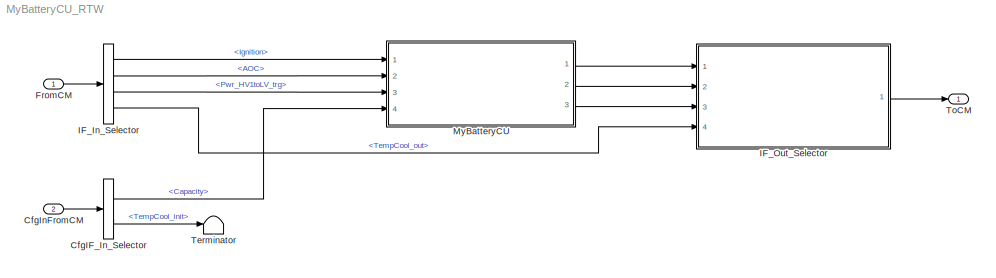
MODEL MyBatteryCU_RTW
KIND model
CONFIG InitFcn = vehicle = 'Car'; if ~length(which('cmself')), cmenv; end\nMyBatteryCU_RTW_bus
CONFIG PreLoadFcn = vehicle = 'Car'; if ~length(which('cmself')), cmenv; end\nMyBatteryCU_RTW_bus
BLOCK [BusSelector] CfgIF_In_Selector
  OutputSignals = BattLV.Capacity,BattLV.TempCool_init
  Ports = [1, 2]
  SID = 26
BLOCK [Inport] CfgInFromCM
  OutDataTypeStr = Bus: cmPTBatteryCUCfgIn
  Port = 2
  SID = 25
BLOCK [Inport] FromCM
  OutDataTypeStr = Bus: cmPTBatteryCUIn
  SID = 24
BLOCK [BusSelector] IF_In_Selector
  OutputSignals = Ignition,BattLV.AOC,Pwr_HV1toLV_trg,BattLV.TempCool_out
  Ports = [1, 4]
  SID = 27
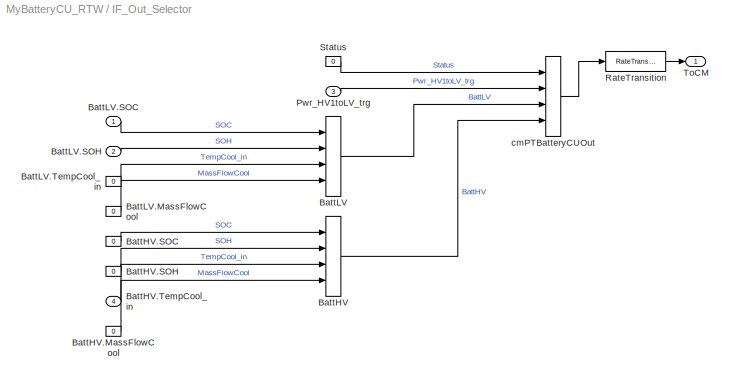
BLOCK [SubSystem] IF_Out_Selector
  OpenFcn = cmSignalSelect('SignalSelection_CB',gcb)
  Ports = [4, 1]
  RequestExecContextInheritance = off
  SID = 28
  UserData = DataTag0
  UserDataPersistent = on
BLOCK [BusCreator] IF_Out_Selector/BattHV
  InheritFromInputs = on
  Inputs = 4
  Ports = [4, 1]
  SID = 33
BLOCK [Constant] IF_Out_Selector/BattHV.MassFlowCool
  SID = 34
  Value = 0
BLOCK [Constant] IF_Out_Selector/BattHV.SOC
  SID = 35
  Value = 0
BLOCK [Constant] IF_Out_Selector/BattHV.SOH
  SID = 36
  Value = 0
BLOCK [Inport] IF_Out_Selector/BattHV.TempCool_in
  Port = 4
  SID = 32
BLOCK [BusCreator] IF_Out_Selector/BattLV
  InheritFromInputs = on
  Inputs = 4
  Ports = [4, 1]
  SID = 37
BLOCK [Constant] IF_Out_Selector/BattLV.MassFlowCool
  SID = 38
  Value = 0
BLOCK [Inport] IF_Out_Selector/BattLV.SOC
  SID = 29
BLOCK [Inport] IF_Out_Selector/BattLV.SOH
  Port = 2
  SID = 30
BLOCK [Constant] IF_Out_Selector/BattLV.TempCool_in
  SID = 39
  Value = 0
BLOCK [Inport] IF_Out_Selector/Pwr_HV1toLV_trg
  Port = 3
  SID = 31
BLOCK [RateTransition] IF_Out_Selector/RateTransition
  OutPortSampleTime = str2num(get_param(bdroot,'FixedStep'))
  SID = 40
BLOCK [Constant] IF_Out_Selector/Status
  SID = 41
  Value = 0
BLOCK [Outport] IF_Out_Selector/ToCM
  SID = 43
BLOCK [BusCreator] IF_Out_Selector/cmPTBatteryCUOut
  InheritFromInputs = on
  Inputs = 4
  Ports = [4, 1]
  SID = 42
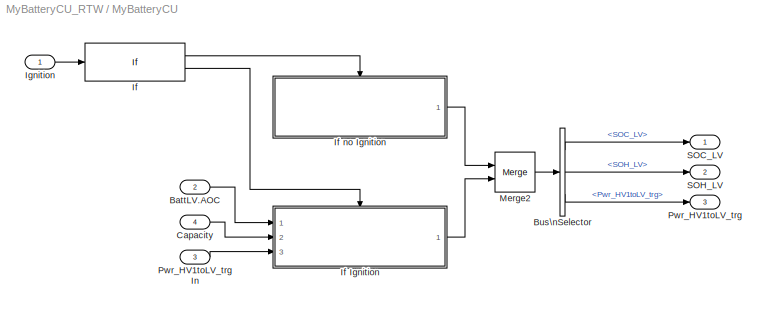
BLOCK [SubSystem] MyBatteryCU
  Ports = [4, 3]
  RequestExecContextInheritance = off
  SID = 44
BLOCK [Inport] MyBatteryCU/BattLV.AOC
  Port = 2
  SID = 46
BLOCK [BusSelector] MyBatteryCU/Bus\nSelector
  OutputSignals = SOC_LV,SOH_LV,Pwr_HV1toLV_trg
  Ports = [1, 3]
  SID = 49
BLOCK [Inport] MyBatteryCU/Capacity
  Port = 4
  SID = 48
BLOCK [If] MyBatteryCU/If
  IfExpression = ~u1
  Ports = [1, 2]
  SID = 50
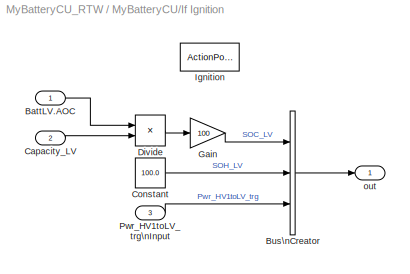
BLOCK [SubSystem] MyBatteryCU/If Ignition
  Ports = [3, 1, 0, 0, 0, 0, 0, 1]
  RequestExecContextInheritance = off
  SID = 51
  TreatAsAtomicUnit = on
BLOCK [Inport] MyBatteryCU/If Ignition/BattLV.AOC
  SID = 52
BLOCK [BusCreator] MyBatteryCU/If Ignition/Bus\nCreator
  DisplayOption = bar
  InheritFromInputs = on
  Inputs = 3
  Ports = [3, 1]
  SID = 56
BLOCK [Inport] MyBatteryCU/If Ignition/Capacity_LV
  Port = 2
  SID = 53
BLOCK [Constant] MyBatteryCU/If Ignition/Constant
  SID = 57
  Value = 100.0
BLOCK [Product] MyBatteryCU/If Ignition/Divide
  Inputs = */
  Ports = [2, 1]
  SID = 58
BLOCK [Gain] MyBatteryCU/If Ignition/Gain
  Gain = 100
  SID = 59
BLOCK [ActionPort] MyBatteryCU/If Ignition/Ignition
  ActionPortLabel = else
  SID = 55
BLOCK [Inport] MyBatteryCU/If Ignition/Pwr_HV1toLV_trg\nInput
  Port = 3
  SID = 54
BLOCK [Outport] MyBatteryCU/If Ignition/out
  InitialOutput = [,100,]
  SID = 60
  VectorParamsAs1DForOutWhenUnconnected = off
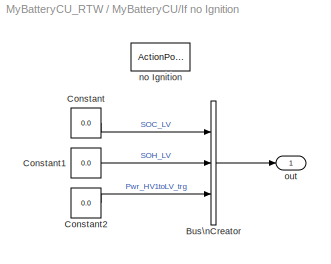
BLOCK [SubSystem] MyBatteryCU/If no Ignition
  Ports = [0, 1, 0, 0, 0, 0, 0, 1]
  RequestExecContextInheritance = off
  SID = 61
  TreatAsAtomicUnit = on
BLOCK [BusCreator] MyBatteryCU/If no Ignition/Bus\nCreator
  DisplayOption = bar
  InheritFromInputs = on
  Inputs = 3
  Ports = [3, 1]
  SID = 63
BLOCK [Constant] MyBatteryCU/If no Ignition/Constant
  SID = 64
  Value = 0.0
BLOCK [Constant] MyBatteryCU/If no Ignition/Constant1
  SID = 65
  Value = 0.0
BLOCK [Constant] MyBatteryCU/If no Ignition/Constant2
  SID = 66
  Value = 0.0
BLOCK [ActionPort] MyBatteryCU/If no Ignition/no Ignition
  ActionPortLabel = if(~u1)
  SID = 62
BLOCK [Outport] MyBatteryCU/If no Ignition/out
  InitialOutput = 0
  SID = 67
  VectorParamsAs1DForOutWhenUnconnected = off
BLOCK [Inport] MyBatteryCU/Ignition
  SID = 45
BLOCK [Merge] MyBatteryCU/Merge2
  Ports = [2, 1]
  SID = 68
BLOCK [Outport] MyBatteryCU/Pwr_HV1toLV_trg
  Port = 3
  SID = 71
  VectorParamsAs1DForOutWhenUnconnected = off
BLOCK [Inport] MyBatteryCU/Pwr_HV1toLV_trg In
  Port = 3
  SID = 47
BLOCK [Outport] MyBatteryCU/SOC_LV
  SID = 69
  VectorParamsAs1DForOutWhenUnconnected = off
BLOCK [Outport] MyBatteryCU/SOH_LV
  Port = 2
  SID = 70
  VectorParamsAs1DForOutWhenUnconnected = off
BLOCK [Terminator] Terminator
  SID = 72
BLOCK [Outport] ToCM
  OutDataTypeStr = Bus: cmPTBatteryCUOut
  SID = 73
LINE CfgIF_In_Selector:1 -> MyBatteryCU:4
LINE CfgIF_In_Selector:2 -> Terminator:1
LINE CfgInFromCM:1 -> CfgIF_In_Selector:1
LINE FromCM:1 -> IF_In_Selector:1
LINE IF_In_Selector:1 -> MyBatteryCU:1
LINE IF_In_Selector:2 -> MyBatteryCU:2
LINE IF_In_Selector:3 -> MyBatteryCU:3
LINE IF_In_Selector:4 -> IF_Out_Selector:4
LINE IF_Out_Selector/BattHV.MassFlowCool:1 -> IF_Out_Selector/BattHV:4
LINE IF_Out_Selector/BattHV.SOC:1 -> IF_Out_Selector/BattHV:1
LINE IF_Out_Selector/BattHV.SOH:1 -> IF_Out_Selector/BattHV:2
LINE IF_Out_Selector/BattHV.TempCool_in:1 -> IF_Out_Selector/BattHV:3
LINE IF_Out_Selector/BattHV:1 -> IF_Out_Selector/cmPTBatteryCUOut:4
LINE IF_Out_Selector/BattLV.MassFlowCool:1 -> IF_Out_Selector/BattLV:4
LINE IF_Out_Selector/BattLV.SOC:1 -> IF_Out_Selector/BattLV:1
LINE IF_Out_Selector/BattLV.SOH:1 -> IF_Out_Selector/BattLV:2
LINE IF_Out_Selector/BattLV.TempCool_in:1 -> IF_Out_Selector/BattLV:3
LINE IF_Out_Selector/BattLV:1 -> IF_Out_Selector/cmPTBatteryCUOut:3
LINE IF_Out_Selector/Pwr_HV1toLV_trg:1 -> IF_Out_Selector/cmPTBatteryCUOut:2
LINE IF_Out_Selector/RateTransition:1 -> IF_Out_Selector/ToCM:1
LINE IF_Out_Selector/Status:1 -> IF_Out_Selector/cmPTBatteryCUOut:1
LINE IF_Out_Selector/cmPTBatteryCUOut:1 -> IF_Out_Selector/RateTransition:1
LINE IF_Out_Selector:1 -> ToCM:1
LINE MyBatteryCU/BattLV.AOC:1 -> MyBatteryCU/If Ignition:1
LINE MyBatteryCU/Bus\nSelector:1 -> MyBatteryCU/SOC_LV:1
LINE MyBatteryCU/Bus\nSelector:2 -> MyBatteryCU/SOH_LV:1
LINE MyBatteryCU/Bus\nSelector:3 -> MyBatteryCU/Pwr_HV1toLV_trg:1
LINE MyBatteryCU/Capacity:1 -> MyBatteryCU/If Ignition:2
LINE MyBatteryCU/If Ignition/BattLV.AOC:1 -> MyBatteryCU/If Ignition/Divide:1
LINE MyBatteryCU/If Ignition/Bus\nCreator:1 -> MyBatteryCU/If Ignition/out:1
LINE MyBatteryCU/If Ignition/Capacity_LV:1 -> MyBatteryCU/If Ignition/Divide:2
LINE MyBatteryCU/If Ignition/Constant:1 -> MyBatteryCU/If Ignition/Bus\nCreator:2
LINE MyBatteryCU/If Ignition/Divide:1 -> MyBatteryCU/If Ignition/Gain:1
LINE MyBatteryCU/If Ignition/Gain:1 -> MyBatteryCU/If Ignition/Bus\nCreator:1
LINE MyBatteryCU/If Ignition/Pwr_HV1toLV_trg\nInput:1 -> MyBatteryCU/If Ignition/Bus\nCreator:3
LINE MyBatteryCU/If Ignition:1 -> MyBatteryCU/Merge2:2
LINE MyBatteryCU/If no Ignition/Bus\nCreator:1 -> MyBatteryCU/If no Ignition/out:1
LINE MyBatteryCU/If no Ignition/Constant1:1 -> MyBatteryCU/If no Ignition/Bus\nCreator:2
LINE MyBatteryCU/If no Ignition/Constant2:1 -> MyBatteryCU/If no Ignition/Bus\nCreator:3
LINE MyBatteryCU/If no Ignition/Constant:1 -> MyBatteryCU/If no Ignition/Bus\nCreator:1
LINE MyBatteryCU/If no Ignition:1 -> MyBatteryCU/Merge2:1
LINE MyBatteryCU/If:1 -> MyBatteryCU/If no Ignition:ifaction
LINE MyBatteryCU/If:2 -> MyBatteryCU/If Ignition:ifaction
LINE MyBatteryCU/Ignition:1 -> MyBatteryCU/If:1
LINE MyBatteryCU/Merge2:1 -> MyBatteryCU/Bus\nSelector:1
LINE MyBatteryCU/Pwr_HV1toLV_trg In:1 -> MyBatteryCU/If Ignition:3
LINE MyBatteryCU:1 -> IF_Out_Selector:1
LINE MyBatteryCU:2 -> IF_Out_Selector:2
LINE MyBatteryCU:3 -> IF_Out_Selector:3
